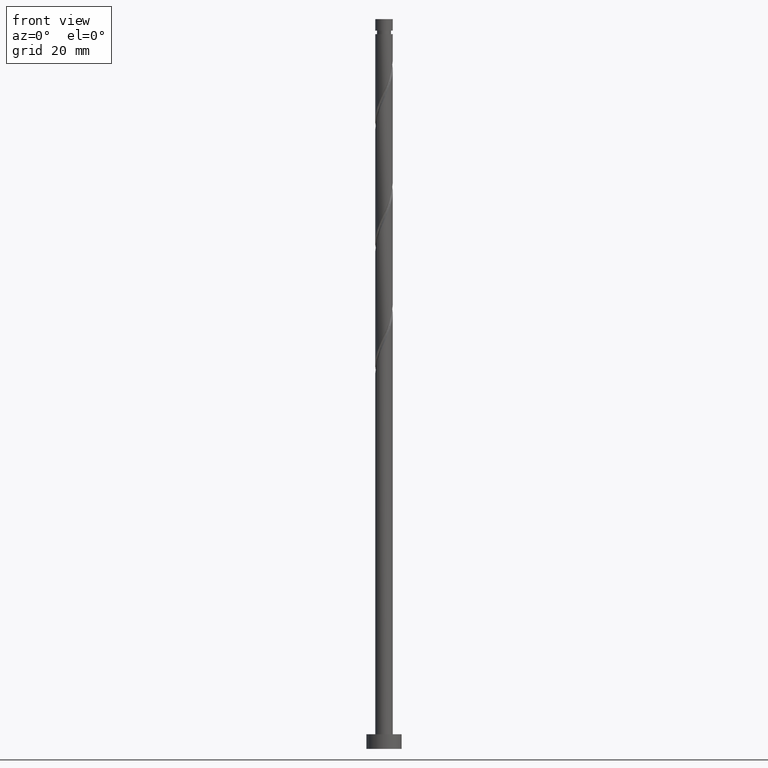
[diagram: clean part render]
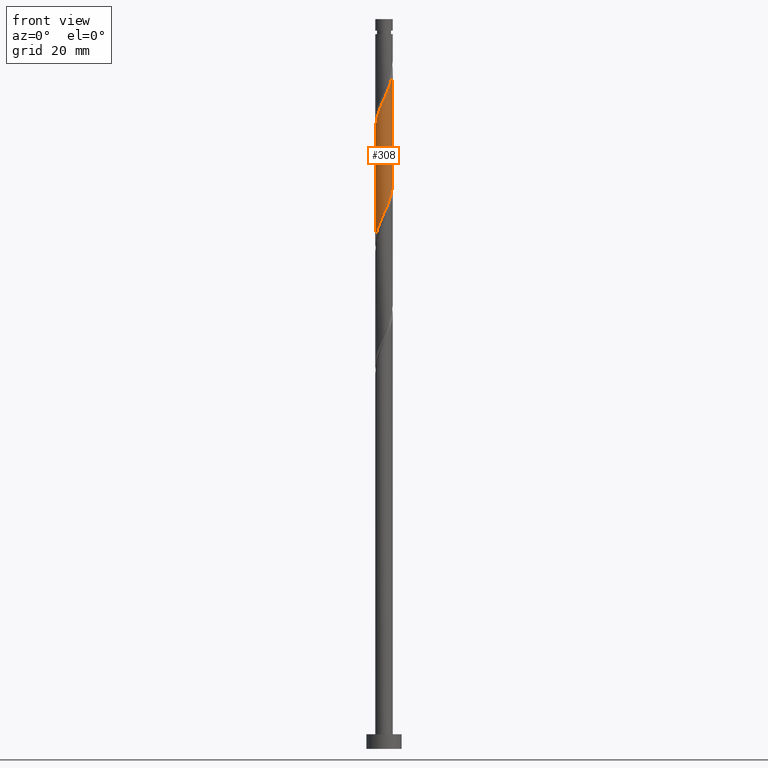
[diagram: same view with one face highlighted and labeled with its STEP entity id]
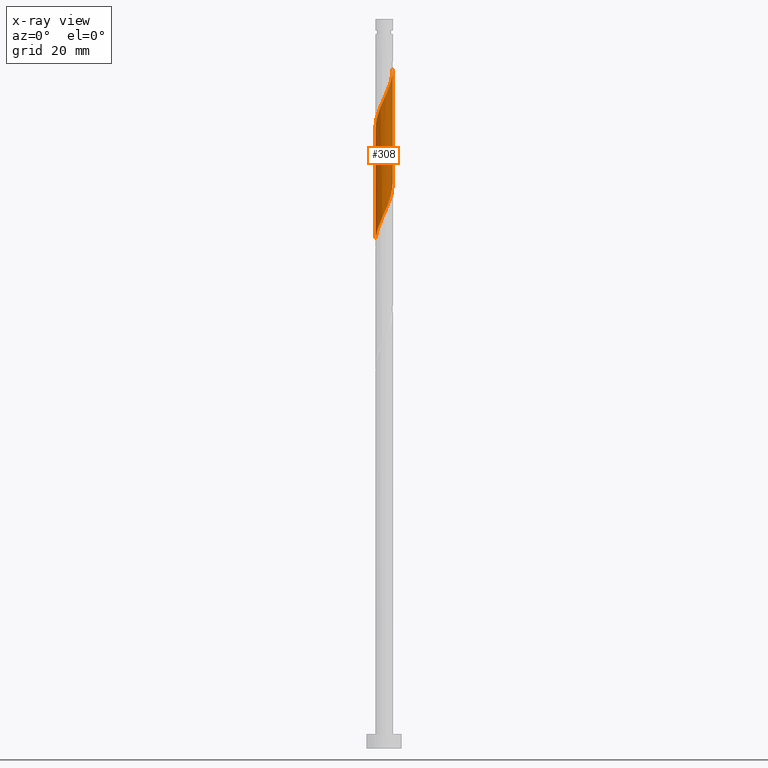
[diagram: x-ray of the same camera — body ghosted, the highlighted face saturated]
A machine part, front view. The second image highlights one B-rep face of the part: STEP entity #308.
The next image is the same camera in x-ray: the body ghosted, the highlighted face saturated — about 0% of this face is hidden behind the body in this view.
In plain terms, the highlighted cylindrical surface (edge-blend (fillet) strip) has radius 3 mm, axis along (-0, -0, -1).
Its self-contained STEP definition (entity closure, byte-faithful):
#76 = CARTESIAN_POINT ( 'NONE',  ( 1.502725340646221985, -2.596500828149241435, 186.1965863601646731 ) ) ;
#85 = CARTESIAN_POINT ( 'NONE',  ( -0.2400118315905282462, -3.012488008736832423, 182.1901761037544247 ) ) ;
#89 = EDGE_CURVE ( 'NONE', #1060, #775, #607, .T. ) ;
#124 = CARTESIAN_POINT ( 'NONE',  ( 2.901834587494015683, -0.8438280090813018441, 230.2670991806775476 ) ) ;
#132 = CARTESIAN_POINT ( 'NONE',  ( -2.901834587494011242, -0.8438280090812977363, 174.1773555909339279 ) ) ;
#135 = CARTESIAN_POINT ( 'NONE',  ( 2.960644198141485717, -0.4843407189274821500, 231.0683812319595631 ) ) ;
#144 = CARTESIAN_POINT ( 'NONE',  ( 3.000000000000005773, -0.2437693156111362391, 231.6046047725654944 ) ) ;
#191 = FACE_OUTER_BOUND ( 'NONE', #242, .T. ) ;
#226 = CARTESIAN_POINT ( 'NONE',  ( 1.187453060654100057, -2.778964719248853132, 185.3953043088826291 ) ) ;
#235 = CARTESIAN_POINT ( 'NONE',  ( -1.283232999305656596, -2.711699295551224242, 179.7863299499082927 ) ) ;
#242 = EDGE_LOOP ( 'NONE', ( #1133, #247, #1811, #1360 ) ) ;
#247 = ORIENTED_EDGE ( 'NONE', *, *, #1032, .F. ) ;
#260 = CARTESIAN_POINT ( 'NONE',  ( 3.000000000000001332, 4.142794973720391394E-15, 193.1334825950309551 ) ) ;
#263 = CARTESIAN_POINT ( 'NONE',  ( 3.000000000000006217, -1.331078529462498573E-15, 232.1443055099139201 ) ) ;
#268 = CARTESIAN_POINT ( 'NONE',  ( -2.615571287713475357, -1.513762372691142222, 175.7799196934980444 ) ) ;
#271 = CARTESIAN_POINT ( 'NONE',  ( -1.817997620638350131, -2.414036937049632847, 217.4465863601647868 ) ) ;
#282 = CARTESIAN_POINT ( 'NONE',  ( -2.846604600309533328, -0.9470175550097446049, 213.4401761037544247 ) ) ;
#308 = ADVANCED_FACE ( 'NONE', ( #191 ), #460, .T. ) ;
#314 = DIRECTION ( 'NONE',  ( -1.000000000000000000, 0.000000000000000000, 0.000000000000000000 ) ) ;
#323 = CARTESIAN_POINT ( 'NONE',  ( 0.000000000000000000, 0.000000000000000000, 249.0000000000000000 ) ) ;
#368 = CARTESIAN_POINT ( 'NONE',  ( -0.9539730929374208301, -2.867511991263167026, 180.5876120011902799 ) ) ;
#379 = CARTESIAN_POINT ( 'NONE',  ( -2.080442193850960297, -2.161425519892978819, 216.6453043088826007 ) ) ;
#386 = CARTESIAN_POINT ( 'NONE',  ( 3.000000000000001332, -0.1193193910102999383, 192.8693116793980096 ) ) ;
#390 = CARTESIAN_POINT ( 'NONE',  ( 1.283232999305656818, -2.711699295551230904, 224.6581248217031543 ) ) ;
#397 = CARTESIAN_POINT ( 'NONE',  ( 2.342886767063565578, -1.908814102736323459, 188.6004325140108051 ) ) ;
#400 = CARTESIAN_POINT ( 'NONE',  ( -0.1239431067051852409, -2.997438590913965584, 221.4529966165749499 ) ) ;
#410 = CARTESIAN_POINT ( 'NONE',  ( 2.758702937603747074, -1.178795190886223532, 229.4658171293955036 ) ) ;
#421 = CARTESIAN_POINT ( 'NONE',  ( -1.187453060654103609, -2.778964719248857129, 219.0491504627288748 ) ) ;
#430 = CARTESIAN_POINT ( 'NONE',  ( -1.894896698789862111, -2.325804484670903172, 178.1837658473441479 ) ) ;
#460 = CYLINDRICAL_SURFACE ( 'NONE', #597, 3.000000000000000444 ) ;
#514 = CARTESIAN_POINT ( 'NONE',  ( 2.537251308848757603, -1.600736016882630341, 189.4017145652928775 ) ) ;
#525 = DIRECTION ( 'NONE',  ( -0.000000000000000000, -0.000000000000000000, -1.000000000000000000 ) ) ;
#545 = CARTESIAN_POINT ( 'NONE',  ( -3.000000000000006217, 9.870919431969089878E-16, 211.3109721765805205 ) ) ;
#554 = CARTESIAN_POINT ( 'NONE',  ( 1.612492905673894361, -2.555886599839288564, 225.4594068729852268 ) ) ;
#597 = AXIS2_PLACEMENT_3D ( 'NONE', #323, #1048, #314 ) ;
#607 =( BOUNDED_CURVE ( )  B_SPLINE_CURVE ( 2, ( #260, #386, #934, #803, #1117, #1677, #514, #397, #973, #1546, #76, #226, #797, #1086, #1374, #85, #1232, #368, #235, #1554, #430, #1727, #1825, #268, #1449, #132, #1008, #701, #1137 ),
 .UNSPECIFIED., .F., .T. ) 
 B_SPLINE_CURVE_WITH_KNOTS ( ( 3, 2, 2, 2, 2, 2, 2, 2, 2, 2, 2, 2, 2, 2, 3 ),
 ( 0.5545271625973831053, 0.5576923076923077094, 0.5673076923076922906, 0.5769230769230768718, 0.5865384615384615641, 0.5961538461538461453, 0.6057692307692307265, 0.6153846153846154188, 0.6250000000000000000, 0.6346153846153845812, 0.6442307692307692735, 0.6538461538461538547, 0.6634615384615384359, 0.6730769230769231282, 0.6795271625973832164 ),
 .UNSPECIFIED. ) 
 CURVE ( )  GEOMETRIC_REPRESENTATION_ITEM ( )  RATIONAL_B_SPLINE_CURVE ( ( 0.9061636035682878454, 0.9069090390690763837, 0.9090909090909331525, 0.9024626128164365824, 0.9090909090909331525, 0.9024626128164365824, 0.9090909090909331525, 0.9024626128164365824, 0.9090909090909331525, 0.9024626128164365824, 0.9090909090909331525, 0.9024626128164365824, 0.9090909090909331525, 0.9024626128164365824, 0.9090909090909331525, 0.9024626128164365824, 0.9090909090909331525, 0.9024626128164365824, 0.9090909090909331525, 0.9024626128164365824, 0.9090909090909331525, 0.9024626128164365824, 0.9090909090909331525, 0.9024626128164365824, 0.9090909090909331525, 0.9024626128164365824, 0.9090909090909331525, 0.9046444828382932402, 0.9061636035682878454 ) ) 
 REPRESENTATION_ITEM ( '' )  );
#701 = CARTESIAN_POINT ( 'NONE',  ( -3.000000000000000000, -0.2437693156111389869, 172.8398499990459811 ) ) ;
#704 = CARTESIAN_POINT ( 'NONE',  ( -3.000000000000004441, -0.1193193910103140243, 211.5751430922134944 ) ) ;
#728 = VERTEX_POINT ( 'NONE', #1520 ) ;
#775 = VERTEX_POINT ( 'NONE', #1593 ) ;
#797 = CARTESIAN_POINT ( 'NONE',  ( 0.8376755528274971718, -2.880676946169971053, 184.5940222576005567 ) ) ;
#803 = CARTESIAN_POINT ( 'NONE',  ( 2.961593349985106816, -0.6013771789905513199, 191.8055607191390379 ) ) ;
#814 = CARTESIAN_POINT ( 'NONE',  ( -2.342886767063572240, -1.908814102736324791, 215.8440222576006136 ) ) ;
#823 = CARTESIAN_POINT ( 'NONE',  ( -2.731615850633954956, -1.292657931028938778, 214.2414581550365256 ) ) ;
#842 = CARTESIAN_POINT ( 'NONE',  ( -0.4878980450008968406, -2.982389173091094303, 220.6517145652929344 ) ) ;
#843 = LINE ( 'NONE', #1803, #1416 ) ;
#851 = CARTESIAN_POINT ( 'NONE',  ( 2.396435889809655162, -1.804742371096837328, 227.8632530268314156 ) ) ;
#911 =( BOUNDED_CURVE ( )  B_SPLINE_CURVE ( 2, ( #1100, #704, #1700, #1672, #282, #823, #1120, #814, #379, #271, #1549, #421, #1131, #842, #400, #995, #1262, #1680, #390, #554, #976, #1421, #851, #1571, #410, #124, #135, #144, #263 ),
 .UNSPECIFIED., .F., .T. ) 
 B_SPLINE_CURVE_WITH_KNOTS ( ( 3, 2, 2, 2, 2, 2, 2, 2, 2, 2, 2, 2, 2, 2, 3 ),
 ( 0.5545271625973835494, 0.5576923076923077094, 0.5673076923076922906, 0.5769230769230768718, 0.5865384615384615641, 0.5961538461538461453, 0.6057692307692308376, 0.6153846153846154188, 0.6250000000000000000, 0.6346153846153845812, 0.6442307692307691624, 0.6538461538461538547, 0.6634615384615384359, 0.6730769230769231282, 0.6795271625973833274 ),
 .UNSPECIFIED. ) 
 CURVE ( )  GEOMETRIC_REPRESENTATION_ITEM ( )  RATIONAL_B_SPLINE_CURVE ( ( 0.9061636035682943957, 0.9069090390690830450, 0.9090909090909394807, 0.9024626128164427996, 0.9090909090909394807, 0.9024626128164427996, 0.9090909090909394807, 0.9024626128164427996, 0.9090909090909394807, 0.9024626128164427996, 0.9090909090909394807, 0.9024626128164427996, 0.9090909090909394807, 0.9024626128164427996, 0.9090909090909394807, 0.9024626128164427996, 0.9090909090909394807, 0.9024626128164427996, 0.9090909090909394807, 0.9024626128164427996, 0.9090909090909394807, 0.9024626128164427996, 0.9090909090909394807, 0.9024626128164427996, 0.9090909090909394807, 0.9024626128164427996, 0.9090909090909394807, 0.9046444828382993464, 0.9061636035682942847 ) ) 
 REPRESENTATION_ITEM ( '' )  );
#934 = CARTESIAN_POINT ( 'NONE',  ( 2.990523579387029063, -0.2382618751084466246, 192.6068427704211388 ) ) ;
#953 = CARTESIAN_POINT ( 'NONE',  ( 3.000000000000001332, 4.142794973720391394E-15, 193.1334825950309551 ) ) ;
#973 = CARTESIAN_POINT ( 'NONE',  ( 2.080442193850956301, -2.161425519892975711, 187.7991504627287611 ) ) ;
#976 = CARTESIAN_POINT ( 'NONE',  ( 1.894896698789863665, -2.325804484670907613, 226.2606889242672992 ) ) ;
#995 = CARTESIAN_POINT ( 'NONE',  ( 0.2400118315905262201, -3.012488008736838196, 222.2542786678570224 ) ) ;
#1008 = CARTESIAN_POINT ( 'NONE',  ( -2.960644198141481276, -0.4843407189274794300, 173.3760735396518839 ) ) ;
#1032 = EDGE_CURVE ( 'NONE', #1298, #728, #911, .T. ) ;
#1048 = DIRECTION ( 'NONE',  ( -0.000000000000000000, -0.000000000000000000, -1.000000000000000000 ) ) ;
#1060 = VERTEX_POINT ( 'NONE', #953 ) ;
#1086 = CARTESIAN_POINT ( 'NONE',  ( 0.4878980450008935099, -2.982389173091089862, 183.7927402063185411 ) ) ;
#1100 = CARTESIAN_POINT ( 'NONE',  ( -3.000000000000006217, 9.870919431969089878E-16, 211.3109721765805205 ) ) ;
#1109 = CARTESIAN_POINT ( 'NONE',  ( 3.000000000000000444, 3.673940397442059868E-16, 249.0000000000000000 ) ) ;
#1117 = CARTESIAN_POINT ( 'NONE',  ( 2.846604600309527555, -0.9470175550097453820, 191.0042786678569655 ) ) ;
#1120 = CARTESIAN_POINT ( 'NONE',  ( -2.537251308848762932, -1.600736016882631452, 215.0427402063185411 ) ) ;
#1131 = CARTESIAN_POINT ( 'NONE',  ( -0.8376755528275000584, -2.880676946169975494, 219.8504325140108904 ) ) ;
#1133 = ORIENTED_EDGE ( 'NONE', *, *, #1398, .F. ) ;
#1137 = CARTESIAN_POINT ( 'NONE',  ( -3.000000000000000444, 3.021099583723894621E-15, 172.3001492616976122 ) ) ;
#1232 = CARTESIAN_POINT ( 'NONE',  ( -0.5969924622639738443, -2.939999999999999503, 181.3888940524723239 ) ) ;
#1262 = CARTESIAN_POINT ( 'NONE',  ( 0.5969924622639738443, -2.940000000000006164, 223.0555607191390664 ) ) ;
#1298 = VERTEX_POINT ( 'NONE', #545 ) ;
#1351 = EDGE_CURVE ( 'NONE', #1298, #775, #843, .T. ) ;
#1360 = ORIENTED_EDGE ( 'NONE', *, *, #89, .F. ) ;
#1374 = CARTESIAN_POINT ( 'NONE',  ( 0.1239431067051825625, -2.997438590913960255, 182.9914581550364687 ) ) ;
#1398 = EDGE_CURVE ( 'NONE', #728, #1060, #1413, .T. ) ;
#1413 = LINE ( 'NONE', #1109, #1818 ) ;
#1416 = VECTOR ( 'NONE', #525, 1000.000000000000000 ) ;
#1421 = CARTESIAN_POINT ( 'NONE',  ( 2.177300491905833191, -2.095722369502529325, 227.0619709755493716 ) ) ;
#1449 = CARTESIAN_POINT ( 'NONE',  ( -2.758702937603743521, -1.178795190886219757, 174.9786376422160004 ) ) ;
#1520 = CARTESIAN_POINT ( 'NONE',  ( 3.000000000000006217, -1.331078529462498573E-15, 232.1443055099139201 ) ) ;
#1546 = CARTESIAN_POINT ( 'NONE',  ( 1.817997620638344802, -2.414036937049630627, 186.9978684114467455 ) ) ;
#1549 = CARTESIAN_POINT ( 'NONE',  ( -1.502725340646227092, -2.596500828149244988, 218.2478684114467455 ) ) ;
#1554 = CARTESIAN_POINT ( 'NONE',  ( -1.612492905673893251, -2.555886599839283235, 178.9850478986262203 ) ) ;
#1571 = CARTESIAN_POINT ( 'NONE',  ( 2.615571287713478466, -1.513762372691147329, 228.6645350781135164 ) ) ;
#1593 = CARTESIAN_POINT ( 'NONE',  ( -3.000000000000000444, 3.021099583723894621E-15, 172.3001492616976122 ) ) ;
#1663 = DIRECTION ( 'NONE',  ( -0.000000000000000000, -0.000000000000000000, -1.000000000000000000 ) ) ;
#1672 = CARTESIAN_POINT ( 'NONE',  ( -2.961593349985113477, -0.6013771789905512088, 212.6388940524724944 ) ) ;
#1677 = CARTESIAN_POINT ( 'NONE',  ( 2.731615850633949183, -1.292657931028937002, 190.2029966165749215 ) ) ;
#1680 = CARTESIAN_POINT ( 'NONE',  ( 0.9539730929374202750, -2.867511991263173687, 223.8568427704211103 ) ) ;
#1700 = CARTESIAN_POINT ( 'NONE',  ( -2.990523579387034392, -0.2382618751084437658, 211.8376120011903652 ) ) ;
#1727 = CARTESIAN_POINT ( 'NONE',  ( -2.177300491905830082, -2.095722369502523996, 177.3824837960620755 ) ) ;
#1803 = CARTESIAN_POINT ( 'NONE',  ( -3.000000000000000444, 0.000000000000000000, 249.0000000000000000 ) ) ;
#1811 = ORIENTED_EDGE ( 'NONE', *, *, #1351, .T. ) ;
#1818 = VECTOR ( 'NONE', #1663, 1000.000000000000000 ) ;
#1825 = CARTESIAN_POINT ( 'NONE',  ( -2.396435889809653830, -1.804742371096831999, 176.5812017447800883 ) ) ;